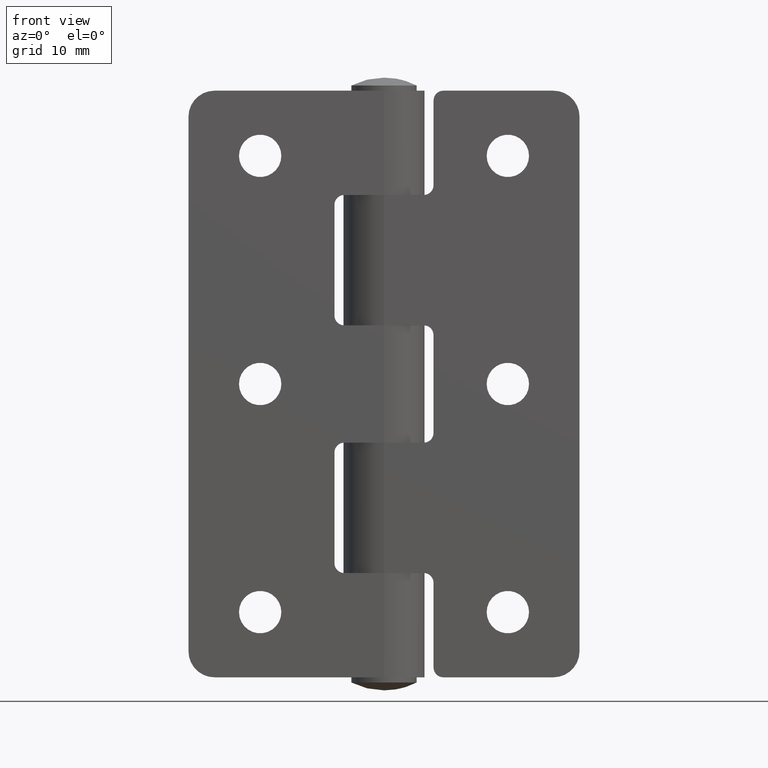
[diagram: clean part render]
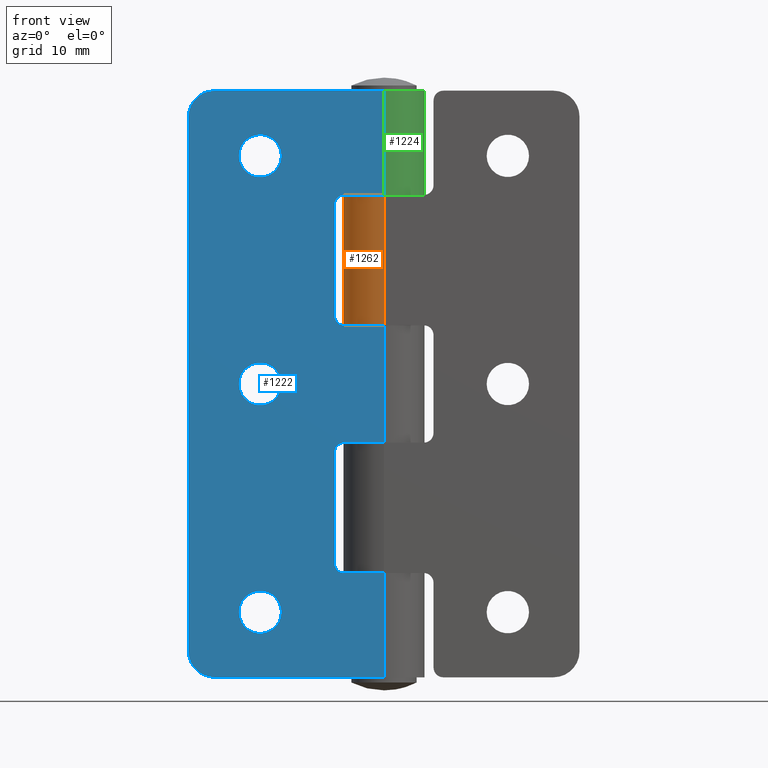
[diagram: same view with three faces highlighted in distinct colors, each labeled with its STEP entity id]
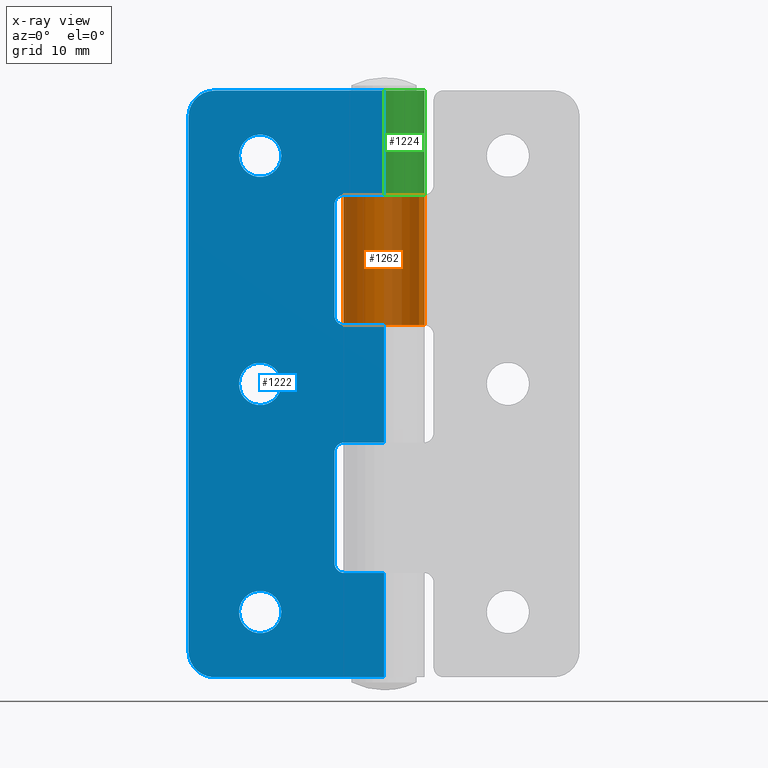
[diagram: x-ray of the same camera — body ghosted, the three highlighted faces saturated]
A machine part, front view with three faces highlighted in distinct colors.
The next image is the same camera in x-ray (body ghosted, the three faces saturated) — at least one of them is partly hidden behind the body in this view.
Their STEP definitions:

[orange] entity #1262 — the highlighted cylindrical surface (partial cylindrical patch) has radius 6.25 mm, axis along (0, 0, -1).
#148=FACE_OUTER_BOUND('',#233,.T.);
#233=EDGE_LOOP('',(#1121,#1122,#1123,#1124));
#326=LINE('',#2027,#432);
#359=LINE('',#2131,#465);
#432=VECTOR('',#1637,20.);
#465=VECTOR('',#1742,20.);
#519=CIRCLE('',#1374,6.25);
#524=CIRCLE('',#1385,6.25);
#607=VERTEX_POINT('',#2024);
#608=VERTEX_POINT('',#2026);
#628=VERTEX_POINT('',#2079);
#636=VERTEX_POINT('',#2108);
#753=EDGE_CURVE('',#608,#607,#326,.T.);
#780=EDGE_CURVE('',#628,#608,#519,.T.);
#796=EDGE_CURVE('',#607,#636,#524,.T.);
#808=EDGE_CURVE('',#628,#636,#359,.T.);
#1121=ORIENTED_EDGE('',*,*,#780,.T.);
#1122=ORIENTED_EDGE('',*,*,#753,.T.);
#1123=ORIENTED_EDGE('',*,*,#796,.T.);
#1124=ORIENTED_EDGE('',*,*,#808,.F.);
#1201=CYLINDRICAL_SURFACE('',#1397,6.25);
#1262=ADVANCED_FACE('',(#148),#1201,.T.);
#1374=AXIS2_PLACEMENT_3D('',#2080,#1687,#1688);
#1385=AXIS2_PLACEMENT_3D('',#2110,#1720,#1721);
#1397=AXIS2_PLACEMENT_3D('',#2140,#1752,#1753);
#1637=DIRECTION('',(0.,0.,1.));
#1687=DIRECTION('center_axis',(-2.22044604925031E-16,-3.08148791101958E-32,
1.));
#1688=DIRECTION('ref_axis',(1.22464679914735E-16,-1.,-3.62225764125809E-33));
#1720=DIRECTION('center_axis',(1.48029736616688E-16,1.64346021921044E-32,
-1.));
#1721=DIRECTION('ref_axis',(1.22464679914735E-16,-1.,1.69381212052082E-33));
#1742=DIRECTION('',(0.,0.,1.));
#1752=DIRECTION('center_axis',(0.,0.,1.));
#1753=DIRECTION('ref_axis',(0.489897948556636,0.871779788708135,0.));
#2024=CARTESIAN_POINT('',(-5.33853912601566,-3.25,-9.));
#2026=CARTESIAN_POINT('',(-5.33853912601566,-3.25,-29.));
#2027=CARTESIAN_POINT('',(-5.33853912601566,-3.25,0.));
#2079=CARTESIAN_POINT('',(7.65404249467096E-16,-6.25,-29.));
#2080=CARTESIAN_POINT('Origin',(0.,0.,-29.));
#2108=CARTESIAN_POINT('',(7.65404249467096E-16,-6.25,-9.));
#2110=CARTESIAN_POINT('Origin',(0.,0.,-9.));
#2131=CARTESIAN_POINT('',(7.65404249467096E-16,-6.25,0.));
#2140=CARTESIAN_POINT('Origin',(0.,0.,0.));

[blue] entity #1222 — the highlighted planar face has unit normal (0, -1, 0).
#40=FACE_BOUND('',#179,.T.);
#41=FACE_BOUND('',#180,.T.);
#42=FACE_BOUND('',#181,.T.);
#69=PLANE('',#1312);
#108=FACE_OUTER_BOUND('',#178,.T.);
#178=EDGE_LOOP('',(#877,#878,#879,#880,#881,#882,#883,#884,#885,#886,#887,
#888,#889,#890,#891,#892,#893,#894));
#179=EDGE_LOOP('',(#895));
#180=EDGE_LOOP('',(#896));
#181=EDGE_LOOP('',(#897));
#266=LINE('',#1840,#372);
#271=LINE('',#1855,#377);
#276=LINE('',#1872,#382);
#279=LINE('',#1883,#385);
#281=LINE('',#1887,#387);
#285=LINE('',#1898,#391);
#289=LINE('',#1909,#395);
#290=LINE('',#1911,#396);
#291=LINE('',#1915,#397);
#292=LINE('',#1919,#398);
#293=LINE('',#1920,#399);
#294=LINE('',#1921,#400);
#372=VECTOR('',#1447,6.10000000000001);
#377=VECTOR('',#1460,17.);
#382=VECTOR('',#1477,6.10000000000001);
#385=VECTOR('',#1488,17.);
#387=VECTOR('',#1492,6.10000000000001);
#391=VECTOR('',#1502,6.10000000000001);
#395=VECTOR('',#1512,16.);
#396=VECTOR('',#1513,26.);
#397=VECTOR('',#1516,82.);
#398=VECTOR('',#1519,26.);
#399=VECTOR('',#1520,16.);
#400=VECTOR('',#1521,18.);
#474=CIRCLE('',#1288,1.5);
#478=CIRCLE('',#1294,1.5);
#480=CIRCLE('',#1298,1.5);
#484=CIRCLE('',#1304,1.5);
#489=CIRCLE('',#1313,4.);
#490=CIRCLE('',#1314,4.);
#491=CIRCLE('',#1315,3.25);
#492=CIRCLE('',#1316,3.25);
#493=CIRCLE('',#1317,3.25);
#541=VERTEX_POINT('',#1825);
#542=VERTEX_POINT('',#1827);
#546=VERTEX_POINT('',#1838);
#549=VERTEX_POINT('',#1845);
#550=VERTEX_POINT('',#1847);
#552=VERTEX_POINT('',#1853);
#554=VERTEX_POINT('',#1859);
#558=VERTEX_POINT('',#1870);
#561=VERTEX_POINT('',#1877);
#562=VERTEX_POINT('',#1879);
#563=VERTEX_POINT('',#1886);
#567=VERTEX_POINT('',#1897);
#571=VERTEX_POINT('',#1908);
#572=VERTEX_POINT('',#1910);
#573=VERTEX_POINT('',#1912);
#574=VERTEX_POINT('',#1914);
#575=VERTEX_POINT('',#1916);
#576=VERTEX_POINT('',#1918);
#577=VERTEX_POINT('',#1922);
#578=VERTEX_POINT('',#1924);
#579=VERTEX_POINT('',#1926);
#655=EDGE_CURVE('',#541,#542,#474,.T.);
#662=EDGE_CURVE('',#541,#546,#266,.T.);
#665=EDGE_CURVE('',#549,#550,#478,.T.);
#669=EDGE_CURVE('',#549,#552,#271,.T.);
#672=EDGE_CURVE('',#554,#552,#480,.T.);
#678=EDGE_CURVE('',#554,#558,#276,.T.);
#681=EDGE_CURVE('',#561,#562,#484,.T.);
#683=EDGE_CURVE('',#561,#542,#279,.T.);
#685=EDGE_CURVE('',#563,#562,#281,.T.);
#691=EDGE_CURVE('',#567,#550,#285,.T.);
#697=EDGE_CURVE('',#546,#571,#289,.T.);
#698=EDGE_CURVE('',#572,#571,#290,.T.);
#699=EDGE_CURVE('',#573,#572,#489,.T.);
#700=EDGE_CURVE('',#574,#573,#291,.T.);
#701=EDGE_CURVE('',#575,#574,#490,.T.);
#702=EDGE_CURVE('',#576,#575,#292,.T.);
#703=EDGE_CURVE('',#576,#567,#293,.T.);
#704=EDGE_CURVE('',#558,#563,#294,.T.);
#705=EDGE_CURVE('',#577,#577,#491,.T.);
#706=EDGE_CURVE('',#578,#578,#492,.T.);
#707=EDGE_CURVE('',#579,#579,#493,.T.);
#877=ORIENTED_EDGE('',*,*,#685,.T.);
#878=ORIENTED_EDGE('',*,*,#681,.F.);
#879=ORIENTED_EDGE('',*,*,#683,.T.);
#880=ORIENTED_EDGE('',*,*,#655,.F.);
#881=ORIENTED_EDGE('',*,*,#662,.T.);
#882=ORIENTED_EDGE('',*,*,#697,.T.);
#883=ORIENTED_EDGE('',*,*,#698,.F.);
#884=ORIENTED_EDGE('',*,*,#699,.F.);
#885=ORIENTED_EDGE('',*,*,#700,.F.);
#886=ORIENTED_EDGE('',*,*,#701,.F.);
#887=ORIENTED_EDGE('',*,*,#702,.F.);
#888=ORIENTED_EDGE('',*,*,#703,.T.);
#889=ORIENTED_EDGE('',*,*,#691,.T.);
#890=ORIENTED_EDGE('',*,*,#665,.F.);
#891=ORIENTED_EDGE('',*,*,#669,.T.);
#892=ORIENTED_EDGE('',*,*,#672,.F.);
#893=ORIENTED_EDGE('',*,*,#678,.T.);
#894=ORIENTED_EDGE('',*,*,#704,.T.);
#895=ORIENTED_EDGE('',*,*,#705,.T.);
#896=ORIENTED_EDGE('',*,*,#706,.T.);
#897=ORIENTED_EDGE('',*,*,#707,.T.);
#1222=ADVANCED_FACE('',(#108,#40,#41,#42),#69,.T.);
#1288=AXIS2_PLACEMENT_3D('',#1828,#1435,#1436);
#1294=AXIS2_PLACEMENT_3D('',#1848,#1453,#1454);
#1298=AXIS2_PLACEMENT_3D('',#1861,#1466,#1467);
#1304=AXIS2_PLACEMENT_3D('',#1880,#1483,#1484);
#1312=AXIS2_PLACEMENT_3D('',#1907,#1510,#1511);
#1313=AXIS2_PLACEMENT_3D('',#1913,#1514,#1515);
#1314=AXIS2_PLACEMENT_3D('',#1917,#1517,#1518);
#1315=AXIS2_PLACEMENT_3D('',#1923,#1522,#1523);
#1316=AXIS2_PLACEMENT_3D('',#1925,#1524,#1525);
#1317=AXIS2_PLACEMENT_3D('',#1927,#1526,#1527);
#1435=DIRECTION('center_axis',(1.48029736616688E-16,-1.,0.));
#1436=DIRECTION('ref_axis',(-0.707106781186549,-1.04672830578919E-16,0.707106781186546));
#1447=DIRECTION('',(1.,1.48029736616688E-16,0.));
#1453=DIRECTION('center_axis',(1.48029736616688E-16,-1.,0.));
#1454=DIRECTION('ref_axis',(-0.707106781186549,-1.04672830578919E-16,-0.707106781186546));
#1460=DIRECTION('',(0.,0.,1.));
#1466=DIRECTION('center_axis',(1.48029736616688E-16,-1.,0.));
#1467=DIRECTION('ref_axis',(-0.707106781186548,-1.04672830578919E-16,0.707106781186547));
#1477=DIRECTION('',(1.,1.48029736616688E-16,1.48029736616688E-16));
#1483=DIRECTION('center_axis',(1.48029736616688E-16,-1.,0.));
#1484=DIRECTION('ref_axis',(-0.707106781186548,-1.04672830578919E-16,-0.707106781186547));
#1488=DIRECTION('',(0.,0.,1.));
#1492=DIRECTION('',(-1.,-1.48029736616688E-16,0.));
#1502=DIRECTION('',(-1.,-1.48029736616688E-16,-2.22044604925031E-16));
#1510=DIRECTION('center_axis',(1.48029736616688E-16,-1.,0.));
#1511=DIRECTION('ref_axis',(1.,0.,0.));
#1512=DIRECTION('',(0.,0.,1.));
#1513=DIRECTION('',(1.,1.48029736616688E-16,0.));
#1514=DIRECTION('center_axis',(-1.48029736616688E-16,1.,0.));
#1515=DIRECTION('ref_axis',(-0.707106781186547,-1.04672830578919E-16,0.707106781186548));
#1516=DIRECTION('',(0.,0.,1.));
#1517=DIRECTION('center_axis',(-1.48029736616688E-16,1.,0.));
#1518=DIRECTION('ref_axis',(-0.707106781186547,-1.04672830578919E-16,-0.707106781186548));
#1519=DIRECTION('',(-1.,-1.48029736616688E-16,0.));
#1520=DIRECTION('',(0.,0.,1.));
#1521=DIRECTION('',(0.,0.,1.));
#1522=DIRECTION('center_axis',(-1.48029736616688E-16,1.,0.));
#1523=DIRECTION('ref_axis',(1.,1.48029736616688E-16,0.));
#1524=DIRECTION('center_axis',(-1.48029736616688E-16,1.,0.));
#1525=DIRECTION('ref_axis',(1.,1.48029736616688E-16,0.));
#1526=DIRECTION('center_axis',(-1.48029736616688E-16,1.,0.));
#1527=DIRECTION('ref_axis',(1.,1.48029736616688E-16,0.));
#1825=CARTESIAN_POINT('',(-6.10000000000001,-6.25,29.));
#1827=CARTESIAN_POINT('',(-7.60000000000001,-6.25,27.5));
#1828=CARTESIAN_POINT('Origin',(-6.10000000000001,-6.25,27.5));
#1838=CARTESIAN_POINT('',(7.65404249467096E-16,-6.25,29.));
#1840=CARTESIAN_POINT('',(-18.8,-6.25,29.));
#1845=CARTESIAN_POINT('',(-7.60000000000001,-6.25,-27.5));
#1847=CARTESIAN_POINT('',(-6.10000000000001,-6.25,-29.));
#1848=CARTESIAN_POINT('Origin',(-6.10000000000001,-6.25,-27.5));
#1853=CARTESIAN_POINT('',(-7.60000000000001,-6.25,-10.5));
#1855=CARTESIAN_POINT('',(-7.60000000000001,-6.25,-14.5));
#1859=CARTESIAN_POINT('',(-6.10000000000001,-6.25,-9.));
#1861=CARTESIAN_POINT('Origin',(-6.10000000000001,-6.25,-10.5));
#1870=CARTESIAN_POINT('',(7.65404249467096E-16,-6.25,-9.));
#1872=CARTESIAN_POINT('',(-18.8,-6.25,-9.00000000000001));
#1877=CARTESIAN_POINT('',(-7.60000000000001,-6.25,10.5));
#1879=CARTESIAN_POINT('',(-6.10000000000001,-6.25,9.));
#1880=CARTESIAN_POINT('Origin',(-6.10000000000001,-6.25,10.5));
#1883=CARTESIAN_POINT('',(-7.60000000000001,-6.25,4.5));
#1886=CARTESIAN_POINT('',(7.65404249467096E-16,-6.25,9.));
#1887=CARTESIAN_POINT('',(-3.80000000000001,-6.25,9.));
#1897=CARTESIAN_POINT('',(7.65404249467096E-16,-6.25,-29.));
#1898=CARTESIAN_POINT('',(-3.8,-6.25,-29.));
#1907=CARTESIAN_POINT('Origin',(-30.,-6.25,0.));
#1908=CARTESIAN_POINT('',(5.55111512312578E-16,-6.25,45.));
#1909=CARTESIAN_POINT('',(7.65404249467096E-16,-6.25,0.));
#1910=CARTESIAN_POINT('',(-26.,-6.25,45.));
#1911=CARTESIAN_POINT('',(-30.,-6.25,45.));
#1912=CARTESIAN_POINT('',(-30.,-6.25,41.));
#1913=CARTESIAN_POINT('Origin',(-26.,-6.25,41.));
#1914=CARTESIAN_POINT('',(-30.,-6.25,-41.));
#1915=CARTESIAN_POINT('',(-30.,-6.25,0.));
#1916=CARTESIAN_POINT('',(-26.,-6.25,-45.));
#1917=CARTESIAN_POINT('Origin',(-26.,-6.25,-41.));
#1918=CARTESIAN_POINT('',(5.55111512312578E-16,-6.25,-45.));
#1919=CARTESIAN_POINT('',(-30.,-6.25,-45.));
#1920=CARTESIAN_POINT('',(7.65404249467096E-16,-6.25,0.));
#1921=CARTESIAN_POINT('',(7.65404249467096E-16,-6.25,0.));
#1922=CARTESIAN_POINT('',(-22.25,-6.25,-35.));
#1923=CARTESIAN_POINT('Origin',(-19.,-6.25,-35.));
#1924=CARTESIAN_POINT('',(-22.25,-6.25,35.));
#1925=CARTESIAN_POINT('Origin',(-19.,-6.25,35.));
#1926=CARTESIAN_POINT('',(-22.25,-6.25,3.9801020972289E-16));
#1927=CARTESIAN_POINT('Origin',(-19.,-6.25,0.));

[green] entity #1224 — the highlighted cylindrical surface (partial cylindrical patch) has radius 6.25 mm, axis along (0, 0, 1).
#110=FACE_OUTER_BOUND('',#183,.T.);
#183=EDGE_LOOP('',(#902,#903,#904,#905));
#289=LINE('',#1909,#395);
#296=LINE('',#1934,#402);
#395=VECTOR('',#1512,16.);
#402=VECTOR('',#1535,16.);
#476=CIRCLE('',#1291,6.25);
#495=CIRCLE('',#1321,6.25);
#543=VERTEX_POINT('',#1831);
#546=VERTEX_POINT('',#1838);
#571=VERTEX_POINT('',#1908);
#581=VERTEX_POINT('',#1933);
#661=EDGE_CURVE('',#546,#543,#476,.T.);
#697=EDGE_CURVE('',#546,#571,#289,.T.);
#710=EDGE_CURVE('',#543,#581,#296,.T.);
#711=EDGE_CURVE('',#571,#581,#495,.T.);
#902=ORIENTED_EDGE('',*,*,#661,.T.);
#903=ORIENTED_EDGE('',*,*,#710,.T.);
#904=ORIENTED_EDGE('',*,*,#711,.F.);
#905=ORIENTED_EDGE('',*,*,#697,.F.);
#1184=CYLINDRICAL_SURFACE('',#1320,6.25);
#1224=ADVANCED_FACE('',(#110),#1184,.T.);
#1291=AXIS2_PLACEMENT_3D('',#1839,#1445,#1446);
#1320=AXIS2_PLACEMENT_3D('',#1932,#1533,#1534);
#1321=AXIS2_PLACEMENT_3D('',#1935,#1536,#1537);
#1445=DIRECTION('center_axis',(0.,0.,1.));
#1446=DIRECTION('ref_axis',(1.22464679914735E-16,-1.,0.));
#1512=DIRECTION('',(0.,0.,1.));
#1533=DIRECTION('center_axis',(0.,0.,1.));
#1534=DIRECTION('ref_axis',(0.489897948556636,0.871779788708135,0.));
#1535=DIRECTION('',(0.,0.,1.));
#1536=DIRECTION('center_axis',(0.,0.,1.));
#1537=DIRECTION('ref_axis',(1.22464679914735E-16,-1.,0.));
#1831=CARTESIAN_POINT('',(-5.33853912601566,-3.25,29.));
#1838=CARTESIAN_POINT('',(7.65404249467096E-16,-6.25,29.));
#1839=CARTESIAN_POINT('Origin',(0.,0.,29.));
#1908=CARTESIAN_POINT('',(5.55111512312578E-16,-6.25,45.));
#1909=CARTESIAN_POINT('',(7.65404249467096E-16,-6.25,0.));
#1932=CARTESIAN_POINT('Origin',(0.,0.,0.));
#1933=CARTESIAN_POINT('',(-5.33853912601566,-3.25,45.));
#1934=CARTESIAN_POINT('',(-5.33853912601566,-3.25,0.));
#1935=CARTESIAN_POINT('Origin',(0.,0.,45.));